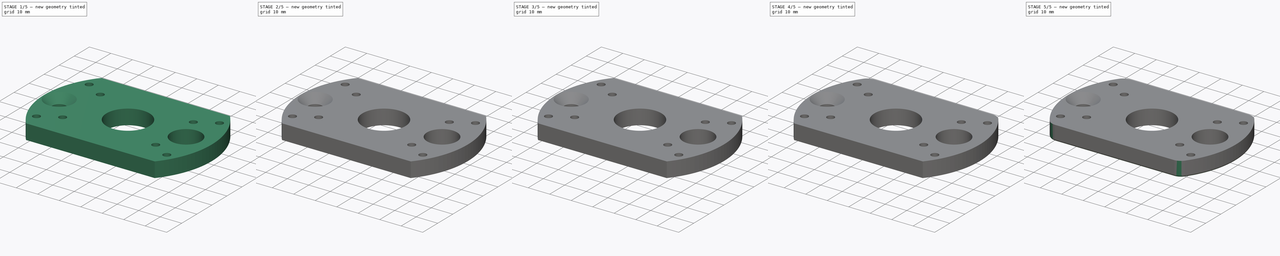
[diagram: build sequence overview — one tinted view per stage of 5, left to right]
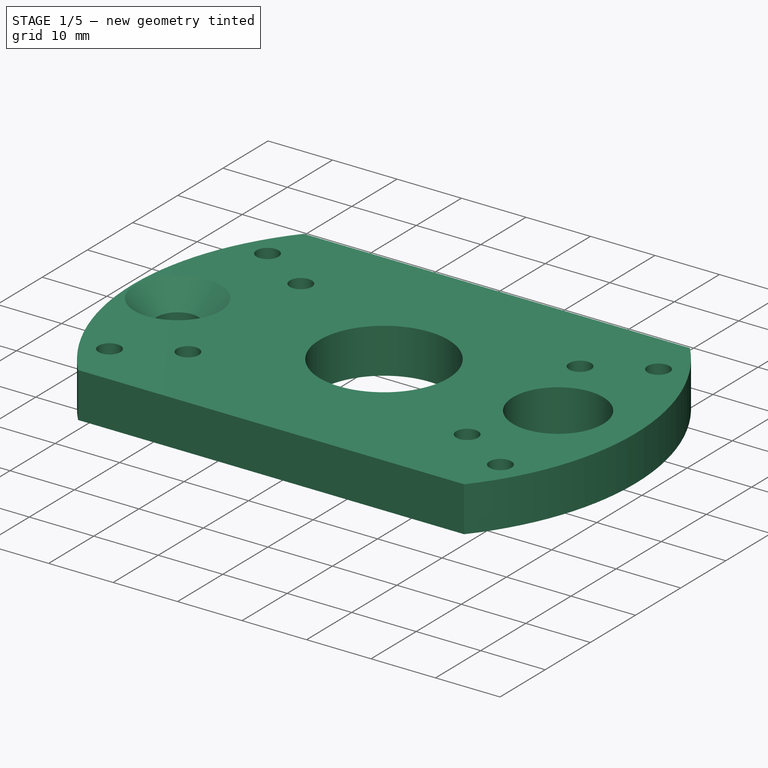
[diagram: stage 1 of 5 — iso view after this stage's code; geometry added in this stage tinted green]
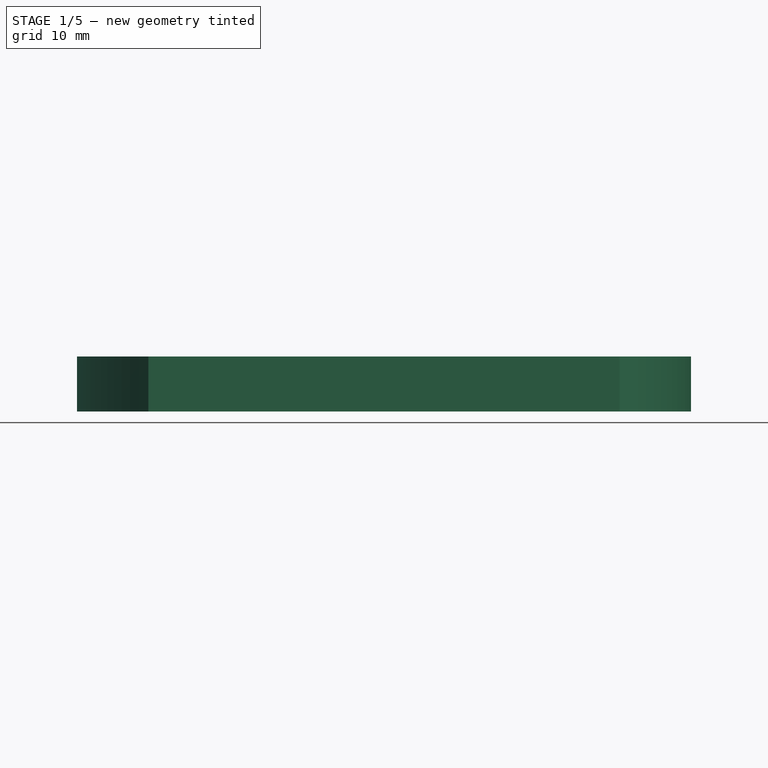
[diagram: stage 1 of 5 — front view after this stage's code; geometry added in this stage tinted green]
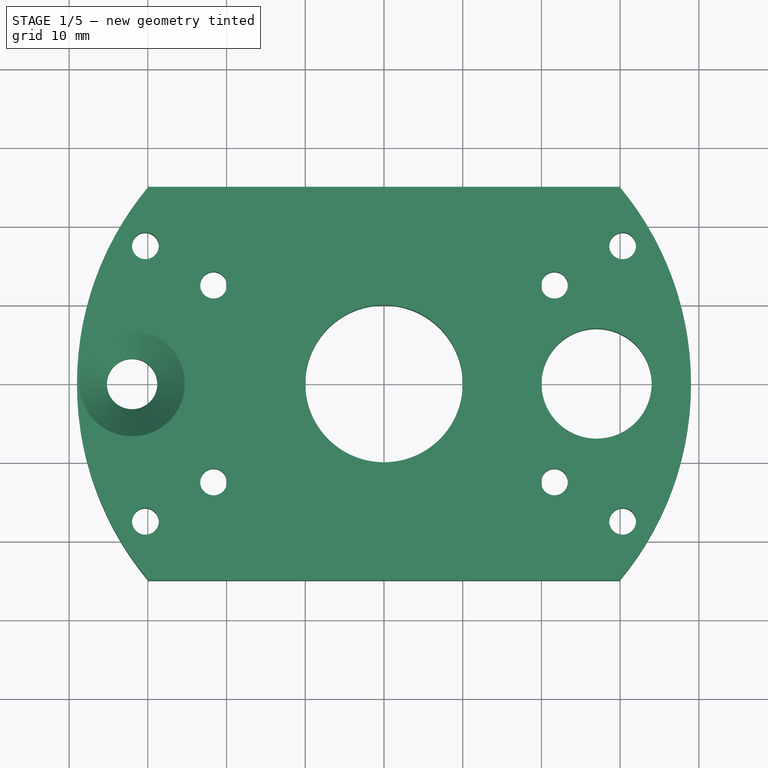
[diagram: stage 1 of 5 — top view after this stage's code; geometry added in this stage tinted green]
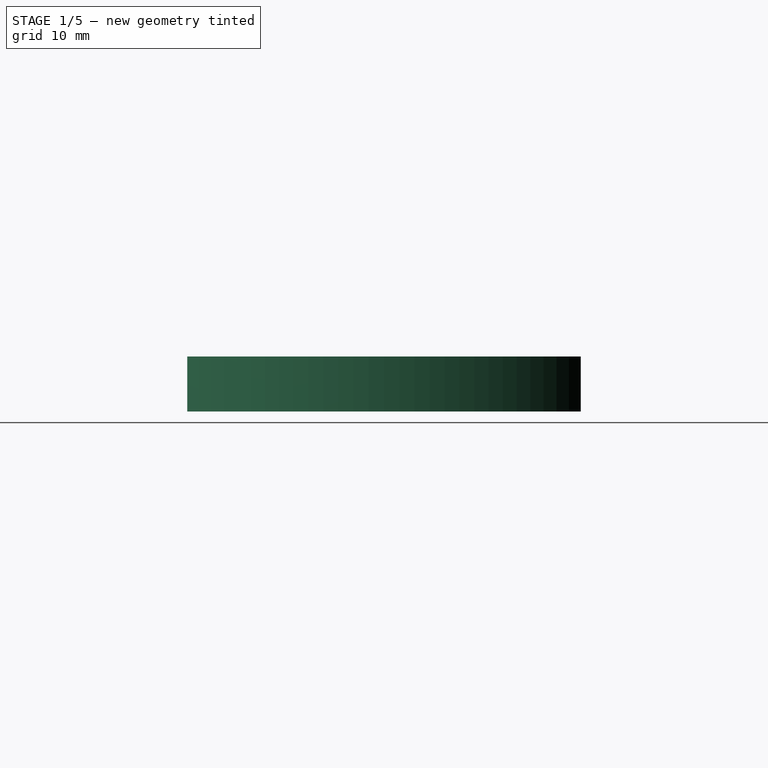
[diagram: stage 1 of 5 — right view after this stage's code; geometry added in this stage tinted green]
FCSTD DOCUMENT  (FreeCAD 0.16R6705 (Git))
Label: KneePushRodMount
License: All rights reserved
LicenseURL: http://en.wikipedia.org/wiki/All_rights_reserved
objects: PartDesign::Chamfer×9, PartDesign::Fillet×5, Sketcher::SketchObject×2, PartDesign::Pad×1, PartDesign::Pocket×1
note: 20 computed .brp shape members not serialized (recipe doc carries the construction recipe); baked Part::Feature solids carry a one-line shape summary decoded from their .brp

FEATURE [Sketcher::SketchObject] Sketch020
  Placement = pos=(0,0,0) rot=(1,0,0;3.14159rad)
  sketch-geometry (20):
    g0: Circle [constr] CenterX=0 CenterY=0 CenterZ=0 NormalX=0 NormalY=0 NormalZ=1 Radius=25
    g1: Circle CenterX=0 CenterY=0 CenterZ=0 NormalX=0 NormalY=0 NormalZ=1 Radius=10
    g2: Circle [constr] CenterX=0 CenterY=0 CenterZ=0 NormalX=0 NormalY=0 NormalZ=1 Radius=40
    g3: ArcOfCircle CenterX=0 CenterY=0 CenterZ=0 NormalX=0 NormalY=0 NormalZ=1 Radius=39 StartAngle=2.44576 EndAngle=3.83743
    g4: LineSegment StartX=-29.9333 StartY=25 StartZ=0 EndX=29.9333 EndY=25 EndZ=0
    g5: LineSegment StartX=-29.9333 StartY=-25 StartZ=0 EndX=29.9333 EndY=-25 EndZ=0
    g6: ArcOfCircle CenterX=0 CenterY=0 CenterZ=0 NormalX=0 NormalY=0 NormalZ=1 Radius=39 StartAngle=5.58735 EndAngle=6.97902
    g7: Circle CenterX=-32 CenterY=0 CenterZ=0 NormalX=0 NormalY=0 NormalZ=1 Radius=3.2
    g8: Circle CenterX=21.6506 CenterY=12.5 CenterZ=0 NormalX=0 NormalY=0 NormalZ=1 Radius=1.7
    g9: Circle CenterX=21.6506 CenterY=-12.5 CenterZ=0 NormalX=0 NormalY=0 NormalZ=1 Radius=1.7
    g10: Circle CenterX=-21.6506 CenterY=12.5 CenterZ=0 NormalX=0 NormalY=0 NormalZ=1 Radius=1.7
    g11: Circle CenterX=-21.6506 CenterY=-12.5 CenterZ=0 NormalX=0 NormalY=0 NormalZ=1 Radius=1.7
    g12: LineSegment [constr] StartX=-30.3109 StartY=17.5 StartZ=0 EndX=30.3109 EndY=-17.5 EndZ=0
    g13: Circle [constr] CenterX=0 CenterY=0 CenterZ=0 NormalX=0 NormalY=0 NormalZ=1 Radius=35
    g14: LineSegment [constr] StartX=30.3109 StartY=17.5 StartZ=0 EndX=-30.3109 EndY=-17.5 EndZ=0
    g15: Circle CenterX=-30.3109 CenterY=17.5 CenterZ=0 NormalX=0 NormalY=0 NormalZ=1 Radius=1.7
    g16: Circle CenterX=-30.3109 CenterY=-17.5 CenterZ=0 NormalX=0 NormalY=0 NormalZ=1 Radius=1.7
    g17: Circle CenterX=30.3109 CenterY=17.5 CenterZ=0 NormalX=0 NormalY=0 NormalZ=1 Radius=1.7
    g18: Circle CenterX=30.3109 CenterY=-17.5 CenterZ=0 NormalX=0 NormalY=0 NormalZ=1 Radius=1.7
    g19: Circle CenterX=27 CenterY=0 CenterZ=0 NormalX=0 NormalY=0 NormalZ=1 Radius=7
  constraints (54):
    c: Coincident(g0,g-1)
    c: Coincident(g1,g-1)
    c: Radius(g1) = 10
    c: Radius(g0) = 25
    c: Coincident(g2,g-1)
    c: Radius(g2) = 40
    c: Coincident(g3,g-1)
    c: Radius(g3) = 39
    c: Horizontal(g4)
    c: Horizontal(g5)
    c: Coincident(g3,g4)
    c: Coincident(g6,g4)
    c: Equal(g3,g6)
    c: Coincident(g3,g5)
    c: Coincident(g6,g5)
    c: Coincident(g3,g6)
    c: DistanceY(g3,g3) = 50
    c: Symmetric(g3,g4,g-1)
    c: PointOnObject(g7,g-1)
    c: Radius(g7) = 3.2
    c: DistanceX(g7,g-1) = 32
    c: PointOnObject(g11,g0)
    c: PointOnObject(g10,g0)
    c: PointOnObject(g8,g0)
    c: PointOnObject(g9,g0)
    c: PointOnObject(g-1,g12)
    c: Coincident(g13,g-1)
    c: PointOnObject(g9,g12)
    c: PointOnObject(g10,g12)
    c: PointOnObject(g11,g14)
    c: Radius(g13) = 35
    c: PointOnObject(g12,g13)
    c: PointOnObject(g12,g13)
    c: PointOnObject(g14,g13)
    c: PointOnObject(g14,g13)
    c: PointOnObject(g8,g14)
    c: Coincident(g15,g12)
    c: Coincident(g16,g14)
    c: Coincident(g18,g12)
    c: Radius(g17) = 1.7
    c: Equal(g17,g18)
    c: Equal(g17,g9)
    c: Equal(g17,g8)
    c: Equal(g17,g10)
    c: Equal(g17,g11)
    c: Equal(g17,g16)
    c: Equal(g17,g15)
    c: Angle(g12,g-1) = 0.523599
    c: Angle(g-1,g14) = 0.523599
    c: Coincident(g17,g14)
    c: PointOnObject(g-1,g14)
    c: PointOnObject(g19,g-1)
    c: Radius(g19) = 7
    c: DistanceX(g-1,g19) = 27
FEATURE [PartDesign::Pad] Pad
  Length = 7
  Length2 = 100
  Placement = pos=(0,0,0) rot=(1,0,0;3.14159rad)
  Sketch = -> Sketch020
  Type = 0
FEATURE [Sketcher::SketchObject] Sketch021
  Placement = pos=(0,0,-7) rot=(1,0,0;3.14159rad)
  Support = -> Pad [Face17]
  sketch-geometry (20):
    g0: Circle [constr] CenterX=0 CenterY=0 CenterZ=0 NormalX=0 NormalY=0 NormalZ=1 Radius=25
    g1: Circle [constr] CenterX=0 CenterY=0 CenterZ=0 NormalX=0 NormalY=0 NormalZ=1 Radius=10
    g2: Circle [constr] CenterX=0 CenterY=0 CenterZ=0 NormalX=0 NormalY=0 NormalZ=1 Radius=40
    g3: ArcOfCircle [constr] CenterX=0 CenterY=0 CenterZ=0 NormalX=0 NormalY=0 NormalZ=1 Radius=39 StartAngle=2.44576 EndAngle=3.83743
    g4: LineSegment [constr] StartX=-29.9333 StartY=25 StartZ=0 EndX=29.9333 EndY=25 EndZ=0
    g5: LineSegment [constr] StartX=-29.9333 StartY=-25 StartZ=0 EndX=29.9333 EndY=-25 EndZ=0
    g6: ArcOfCircle [constr] CenterX=0 CenterY=0 CenterZ=0 NormalX=0 NormalY=0 NormalZ=1 Radius=39 StartAngle=5.58735 EndAngle=6.97902
    g7: Circle [constr] CenterX=-32 CenterY=0 CenterZ=0 NormalX=0 NormalY=0 NormalZ=1 Radius=3.2
    g8: Circle CenterX=21.6506 CenterY=12.5 CenterZ=0 NormalX=0 NormalY=0 NormalZ=1 Radius=3.5
    g9: Circle CenterX=21.6506 CenterY=-12.5 CenterZ=0 NormalX=0 NormalY=0 NormalZ=1 Radius=3.5
    g10: Circle CenterX=-21.6506 CenterY=12.5 CenterZ=0 NormalX=0 NormalY=0 NormalZ=1 Radius=3.5
    g11: Circle CenterX=-21.6506 CenterY=-12.5 CenterZ=0 NormalX=0 NormalY=0 NormalZ=1 Radius=3.5
    g12: LineSegment [constr] StartX=-30.3109 StartY=17.5 StartZ=0 EndX=30.3109 EndY=-17.5 EndZ=0
    g13: Circle [constr] CenterX=0 CenterY=0 CenterZ=0 NormalX=0 NormalY=0 NormalZ=1 Radius=35
    g14: LineSegment [constr] StartX=30.3109 StartY=17.5 StartZ=0 EndX=-30.3109 EndY=-17.5 EndZ=0
    g15: Circle [constr] CenterX=-30.3109 CenterY=17.5 CenterZ=0 NormalX=0 NormalY=0 NormalZ=1 Radius=3.5
    g16: Circle [constr] CenterX=-30.3109 CenterY=-17.5 CenterZ=0 NormalX=0 NormalY=0 NormalZ=1 Radius=3.5
    g17: Circle [constr] CenterX=30.3109 CenterY=17.5 CenterZ=0 NormalX=0 NormalY=0 NormalZ=1 Radius=3.5
    g18: Circle [constr] CenterX=30.3109 CenterY=-17.5 CenterZ=0 NormalX=0 NormalY=0 NormalZ=1 Radius=3.5
    g19: Circle [constr] CenterX=27 CenterY=0 CenterZ=0 NormalX=0 NormalY=0 NormalZ=1 Radius=7
  constraints (54):
    c: Coincident(g0,g-1)
    c: Coincident(g1,g-1)
    c: Radius(g1) = 10
    c: Radius(g0) = 25
    c: Coincident(g2,g-1)
    c: Radius(g2) = 40
    c: Coincident(g3,g-1)
    c: Radius(g3) = 39
    c: Horizontal(g4)
    c: Horizontal(g5)
    c: Coincident(g3,g4)
    c: Coincident(g6,g4)
    c: Equal(g3,g6)
    c: Coincident(g3,g5)
    c: Coincident(g6,g5)
    c: Coincident(g3,g6)
    c: DistanceY(g3,g3) = 50
    c: Symmetric(g3,g4,g-1)
    c: PointOnObject(g7,g-1)
    c: Radius(g7) = 3.2
    c: DistanceX(g7,g-1) = 32
    c: PointOnObject(g11,g0)
    c: PointOnObject(g10,g0)
    c: PointOnObject(g8,g0)
    c: PointOnObject(g9,g0)
    c: PointOnObject(g-1,g12)
    c: Coincident(g13,g-1)
    c: PointOnObject(g9,g12)
    c: PointOnObject(g10,g12)
    c: PointOnObject(g11,g14)
    c: Radius(g13) = 35
    c: PointOnObject(g12,g13)
    c: PointOnObject(g12,g13)
    c: PointOnObject(g14,g13)
    c: PointOnObject(g14,g13)
    c: PointOnObject(g8,g14)
    c: Coincident(g15,g12)
    c: Coincident(g16,g14)
    c: Coincident(g18,g12)
    c: Radius(g17) = 3.5
    c: Equal(g17,g18)
    c: Equal(g17,g9)
    c: Equal(g17,g8)
    c: Equal(g17,g10)
    c: Equal(g17,g11)
    c: Equal(g17,g16)
    c: Equal(g17,g15)
    c: Angle(g12,g-1) = 0.523599
    c: Angle(g-1,g14) = 0.523599
    c: Coincident(g17,g14)
    c: PointOnObject(g-1,g14)
    c: PointOnObject(g19,g-1)
    c: Radius(g19) = 7
    c: DistanceX(g-1,g19) = 27
FEATURE [PartDesign::Pocket] Pocket
  Length = 1
  Placement = pos=(0,0,0) rot=(1,0,0;3.14159rad)
  Sketch = -> Sketch021
  Type = 0
FEATURE [PartDesign::Chamfer] Chamfer
  Base = -> Pocket [Edge14]
  Placement = pos=(0,0,0) rot=(1,0,0;3.14159rad)
  Size = 3.5
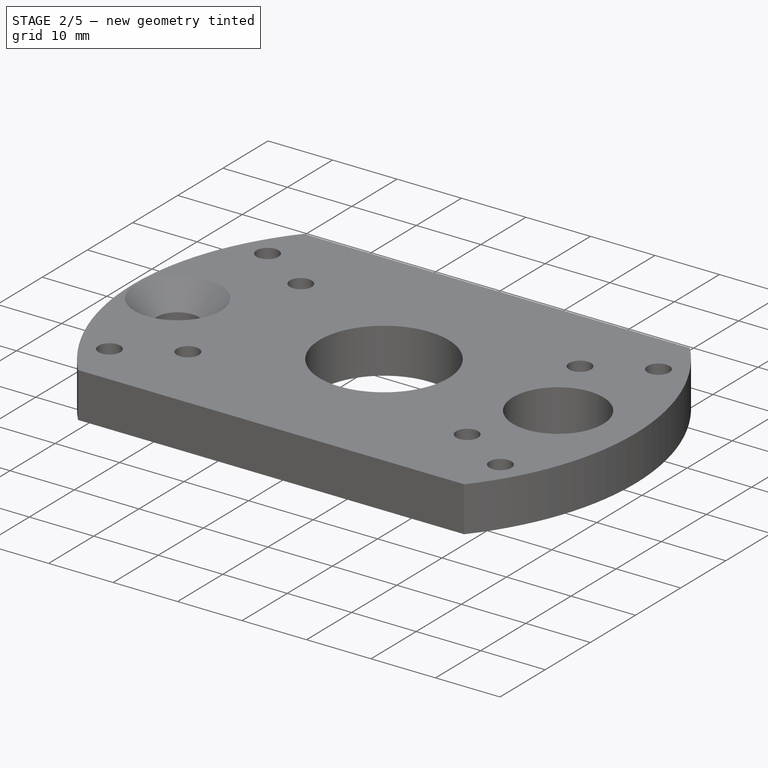
[diagram: stage 2 of 5 — iso view after this stage's code; geometry added in this stage tinted green]
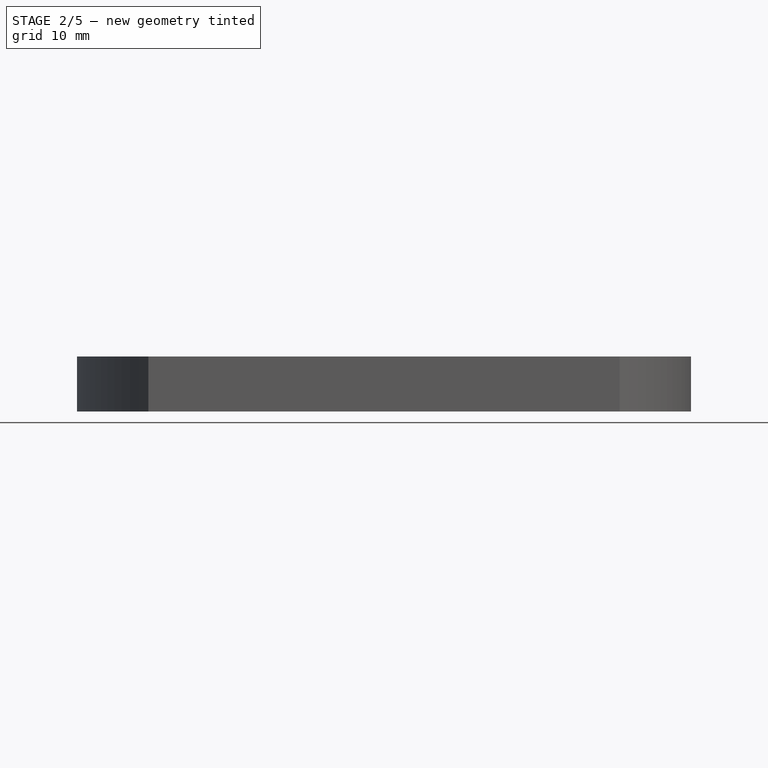
[diagram: stage 2 of 5 — front view after this stage's code; geometry added in this stage tinted green]
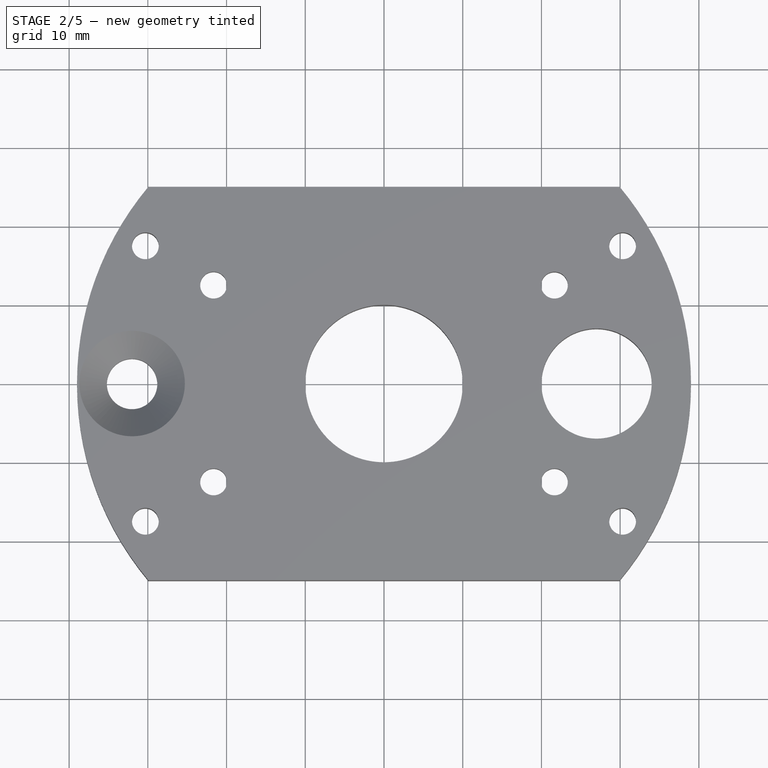
[diagram: stage 2 of 5 — top view after this stage's code; geometry added in this stage tinted green]
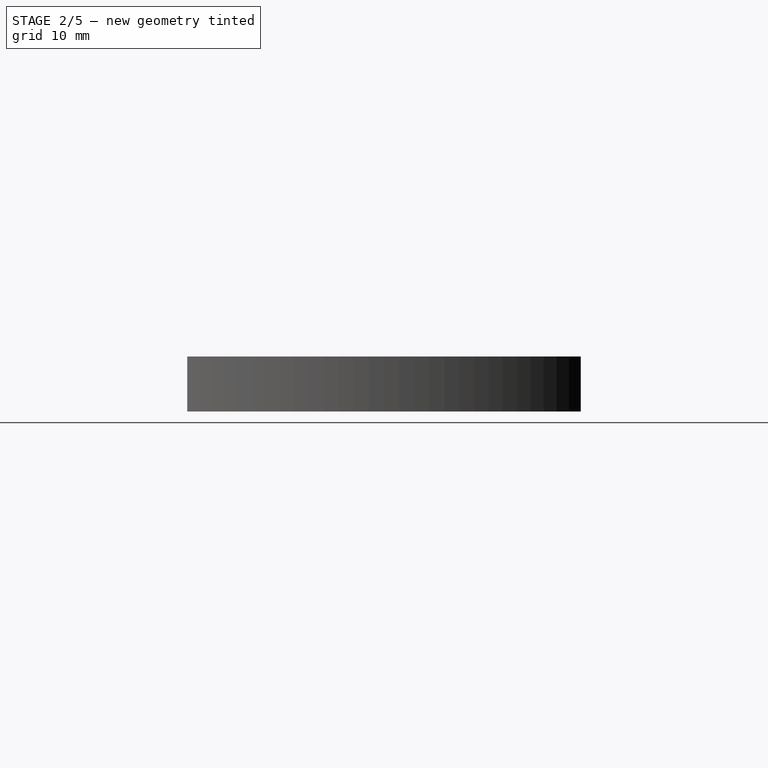
[diagram: stage 2 of 5 — right view after this stage's code; geometry added in this stage tinted green]
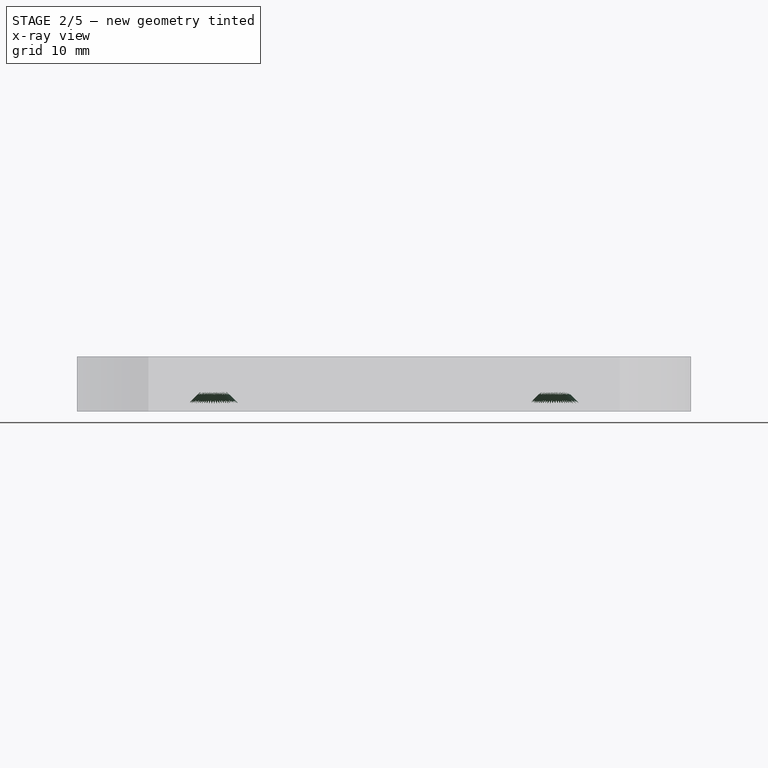
[diagram: stage 2 of 5 — x-ray composite at the front view; earlier geometry ghosted, this stage's added geometry solid]
FEATURE [PartDesign::Chamfer] Chamfer001
  Base = -> Chamfer [Edge35]
  Placement = pos=(0,0,0) rot=(1,0,0;3.14159rad)
  Size = 1.5
FEATURE [PartDesign::Chamfer] Chamfer002
  Base = -> Chamfer001 [Edge40]
  Placement = pos=(0,0,0) rot=(1,0,0;3.14159rad)
  Size = 1.5
FEATURE [PartDesign::Chamfer] Chamfer003
  Base = -> Chamfer002 [Edge38]
  Placement = pos=(0,0,0) rot=(1,0,0;3.14159rad)
  Size = 1.5
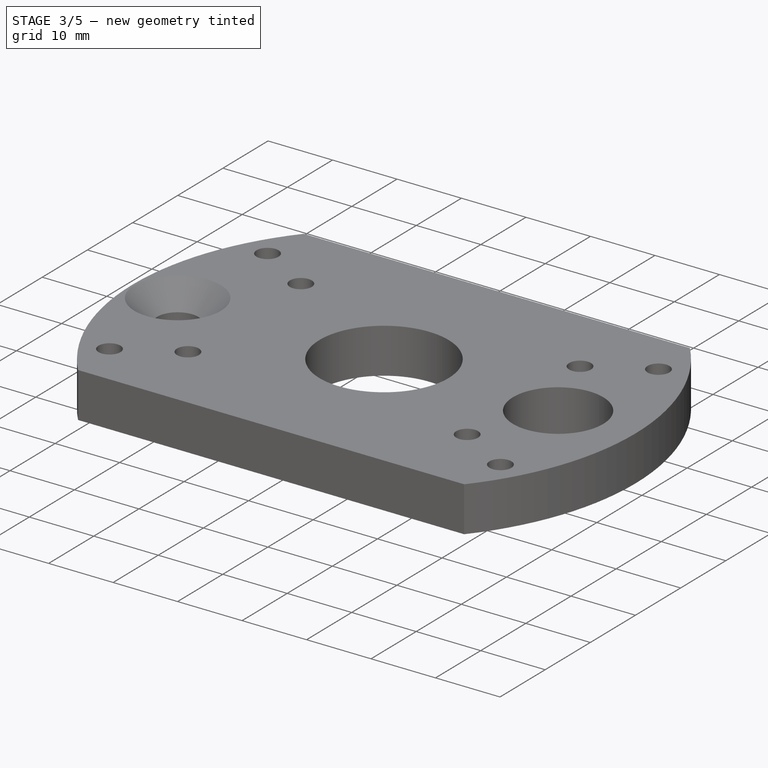
[diagram: stage 3 of 5 — iso view after this stage's code; geometry added in this stage tinted green]
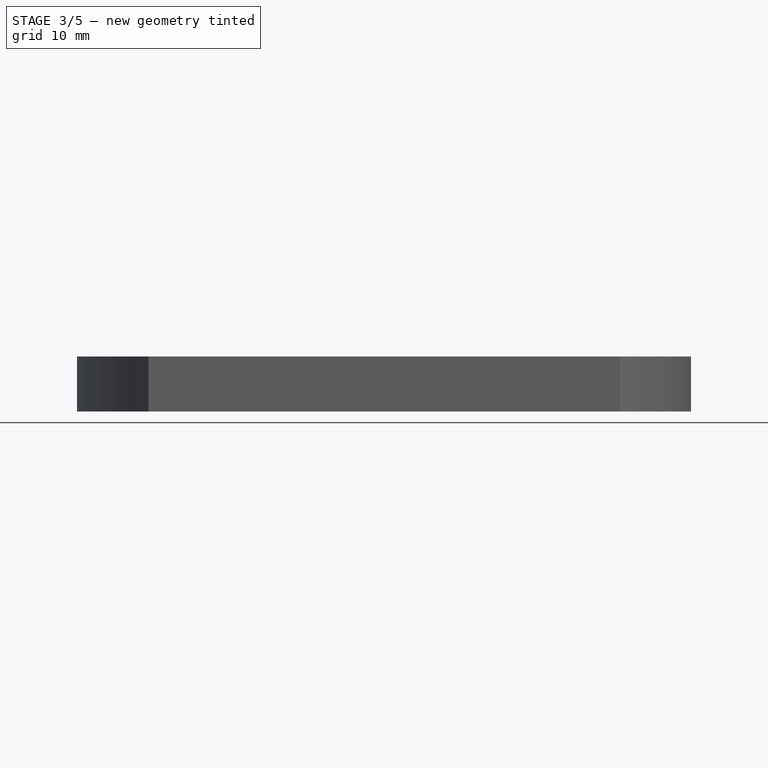
[diagram: stage 3 of 5 — front view after this stage's code; geometry added in this stage tinted green]
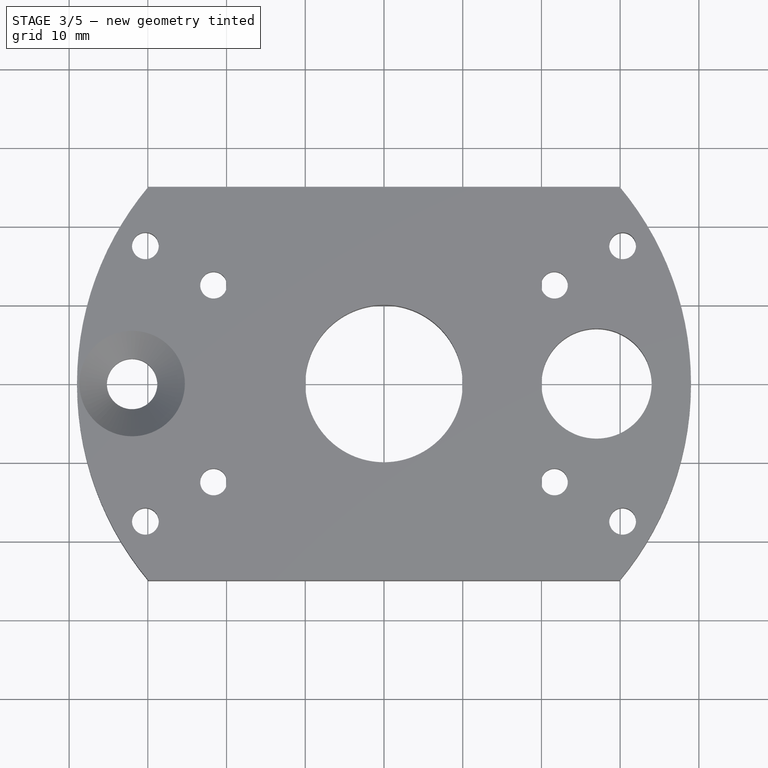
[diagram: stage 3 of 5 — top view after this stage's code; geometry added in this stage tinted green]
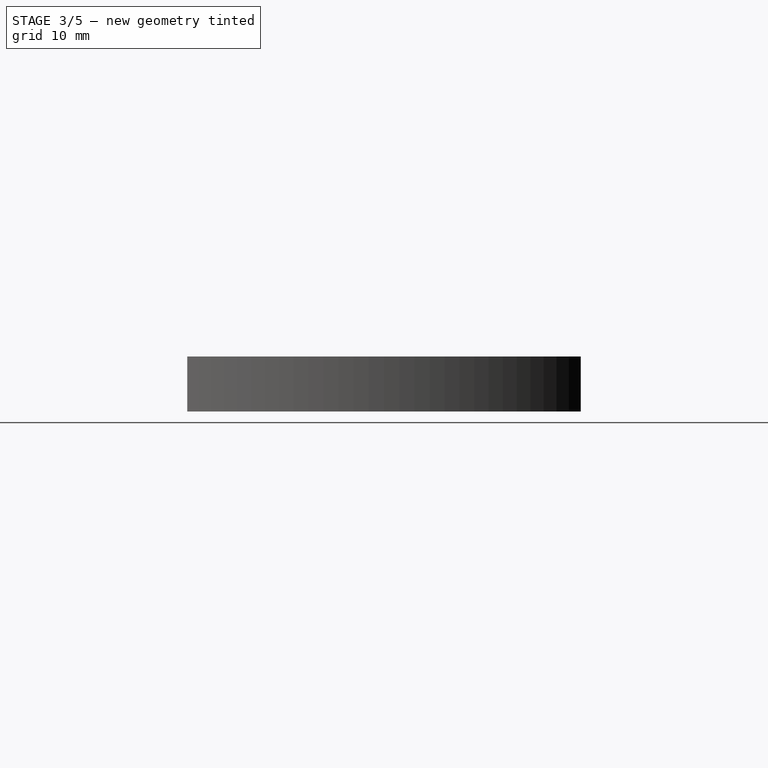
[diagram: stage 3 of 5 — right view after this stage's code; geometry added in this stage tinted green]
FEATURE [PartDesign::Chamfer] Chamfer004
  Base = -> Chamfer003 [Edge36]
  Placement = pos=(0,0,0) rot=(1,0,0;3.14159rad)
  Size = 1.5
FEATURE [PartDesign::Chamfer] Chamfer005
  Base = -> Chamfer004 [Edge48]
  Placement = pos=(0,0,0) rot=(1,0,0;3.14159rad)
  Size = 1.5
FEATURE [PartDesign::Chamfer] Chamfer006
  Base = -> Chamfer005 [Edge33]
  Placement = pos=(0,0,0) rot=(1,0,0;3.14159rad)
  Size = 1.5
FEATURE [PartDesign::Chamfer] Chamfer007
  Base = -> Chamfer006 [Edge7]
  Placement = pos=(0,0,0) rot=(1,0,0;3.14159rad)
  Size = 1.5
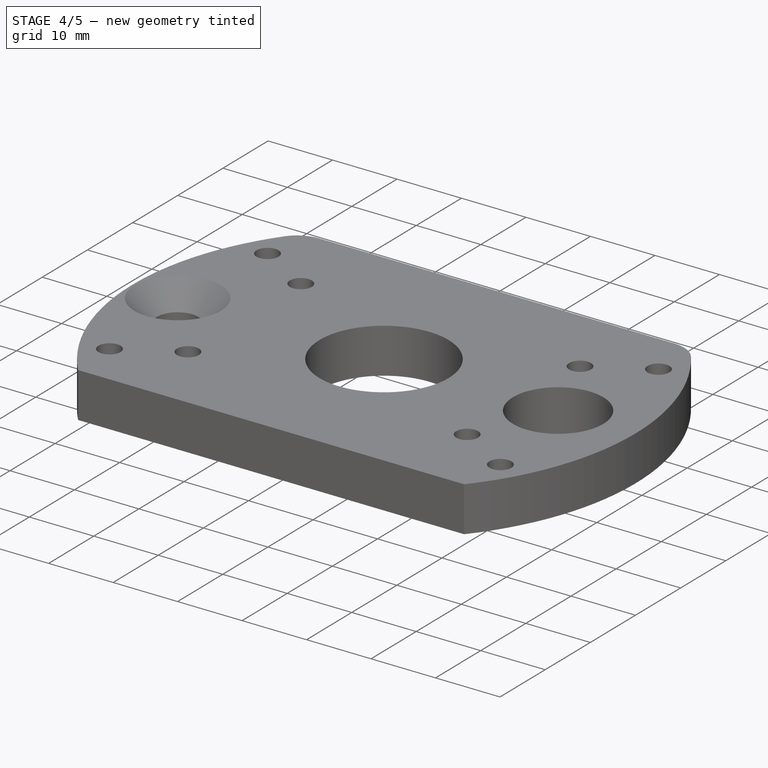
[diagram: stage 4 of 5 — iso view after this stage's code; geometry added in this stage tinted green]
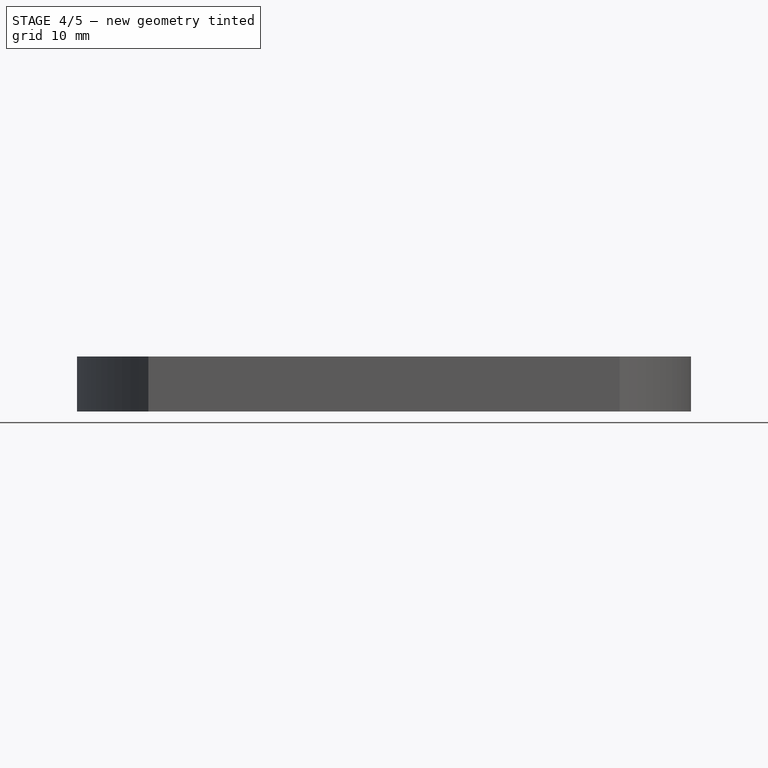
[diagram: stage 4 of 5 — front view after this stage's code; geometry added in this stage tinted green]
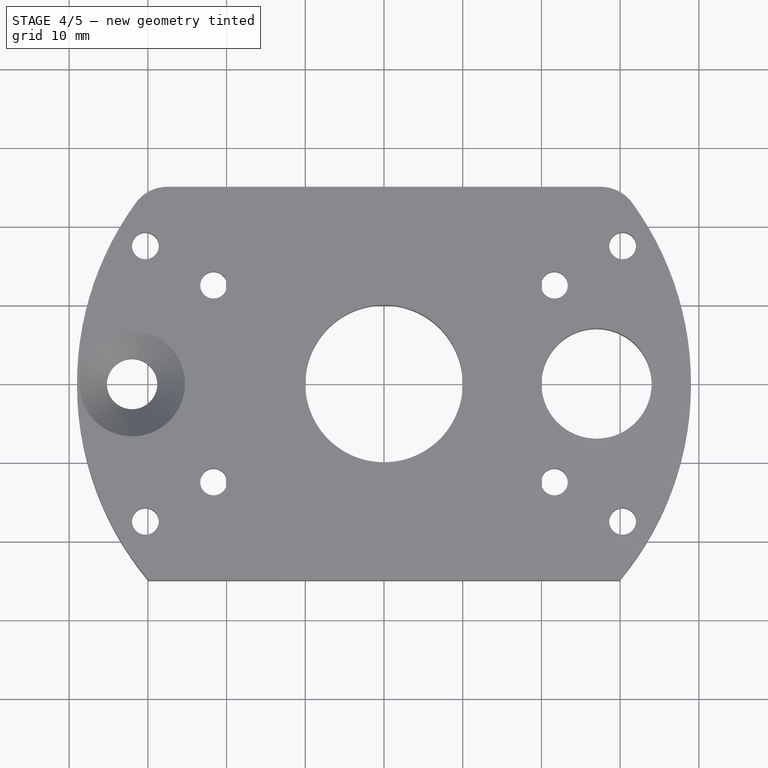
[diagram: stage 4 of 5 — top view after this stage's code; geometry added in this stage tinted green]
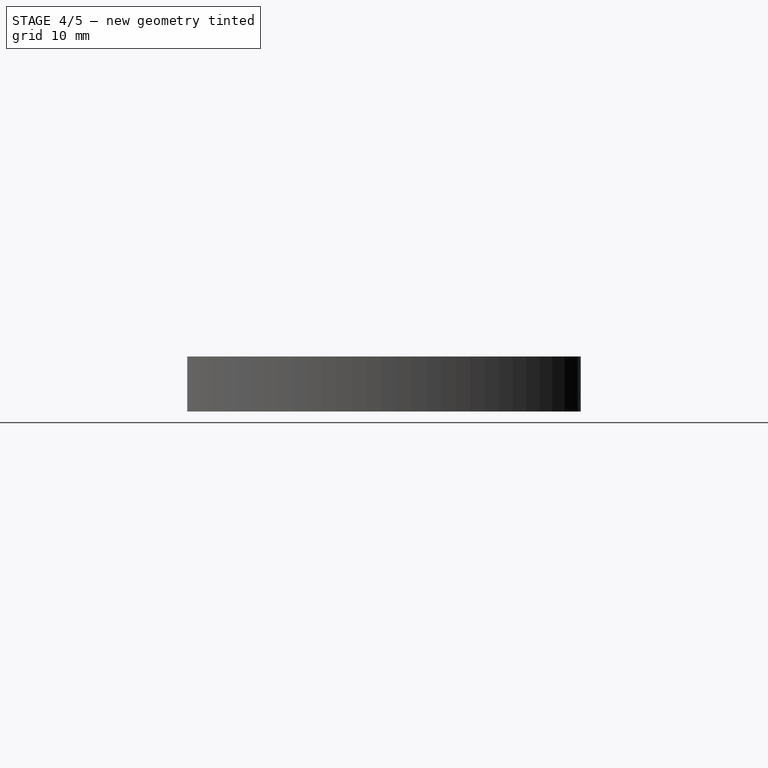
[diagram: stage 4 of 5 — right view after this stage's code; geometry added in this stage tinted green]
FEATURE [PartDesign::Chamfer] Chamfer008
  Base = -> Chamfer007 [Edge10]
  Placement = pos=(0,0,0) rot=(1,0,0;3.14159rad)
  Size = 1.5
FEATURE [PartDesign::Fillet] Fillet
  Base = -> Chamfer008 [Edge25]
  Placement = pos=(0,0,0) rot=(1,0,0;3.14159rad)
  Radius = 5
FEATURE [PartDesign::Fillet] Fillet001
  Base = -> Fillet [Edge25]
  Placement = pos=(0,0,0) rot=(1,0,0;3.14159rad)
  Radius = 5
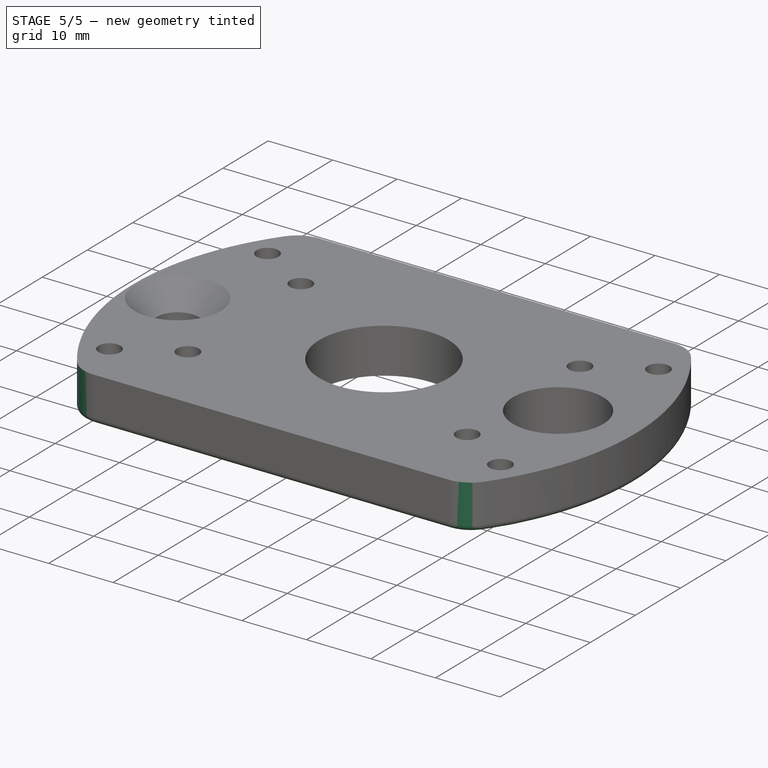
[diagram: stage 5 of 5 — iso view after this stage's code; geometry added in this stage tinted green]
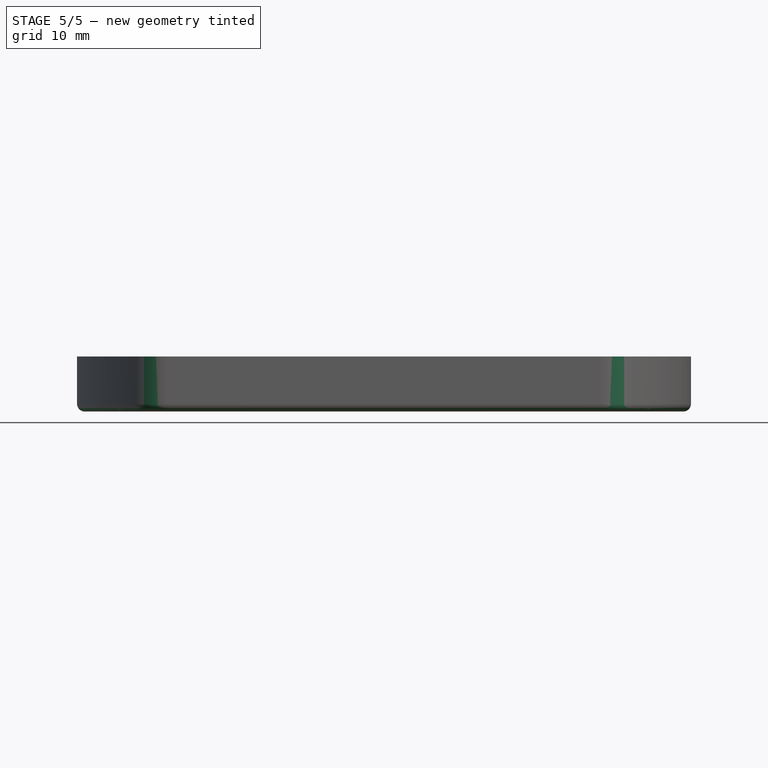
[diagram: stage 5 of 5 — front view after this stage's code; geometry added in this stage tinted green]
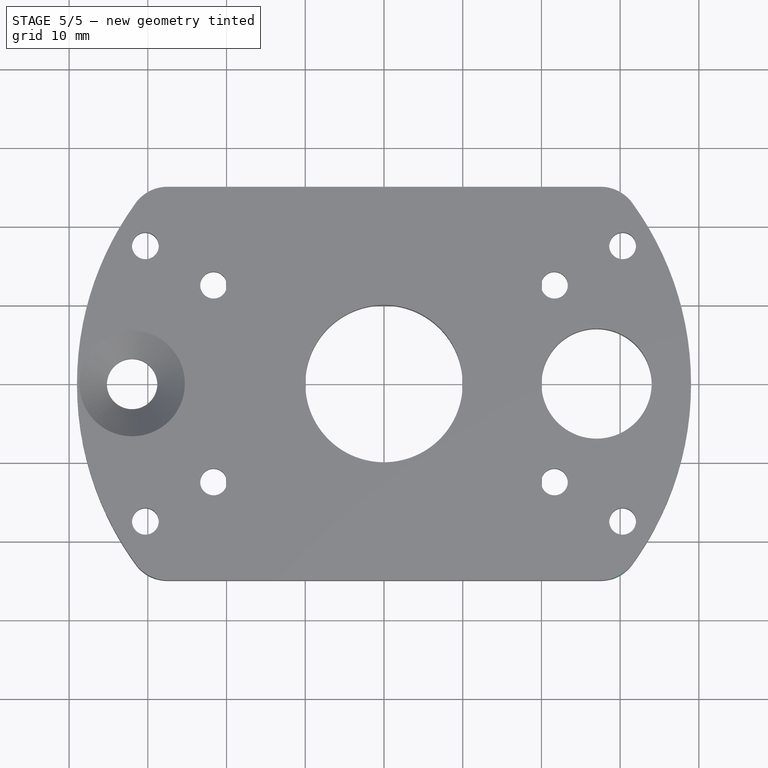
[diagram: stage 5 of 5 — top view after this stage's code; geometry added in this stage tinted green]
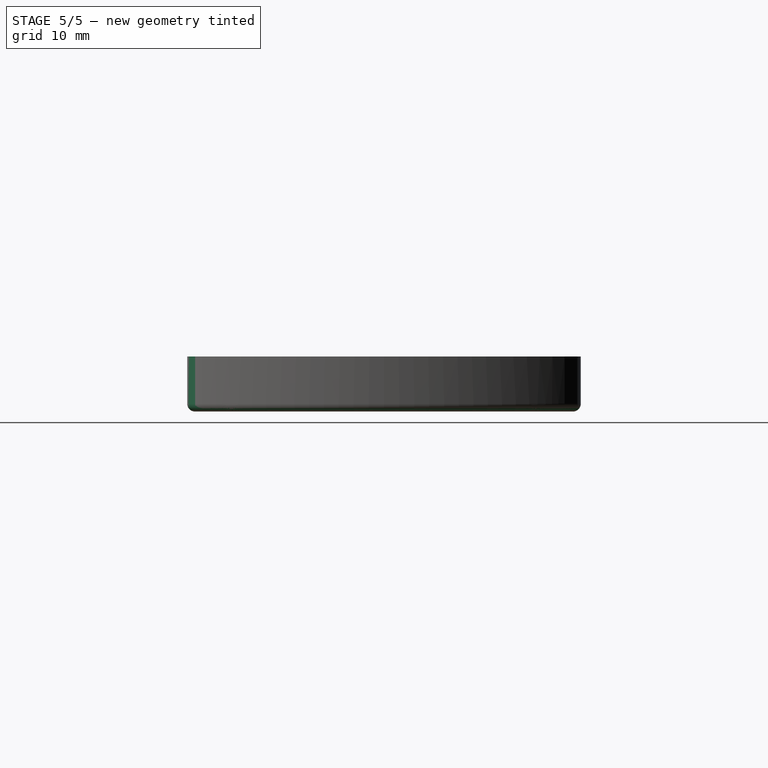
[diagram: stage 5 of 5 — right view after this stage's code; geometry added in this stage tinted green]
FEATURE [PartDesign::Fillet] Fillet002
  Base = -> Fillet001 [Edge26]
  Placement = pos=(0,0,0) rot=(1,0,0;3.14159rad)
  Radius = 5
FEATURE [PartDesign::Fillet] Fillet003
  Base = -> Fillet002 [Edge27]
  Placement = pos=(0,0,0) rot=(1,0,0;3.14159rad)
  Radius = 5
FEATURE [PartDesign::Fillet] Fillet004
  Base = -> Fillet003 [Edge8]
  Placement = pos=(0,0,0) rot=(1,0,0;3.14159rad)
  Radius = 1
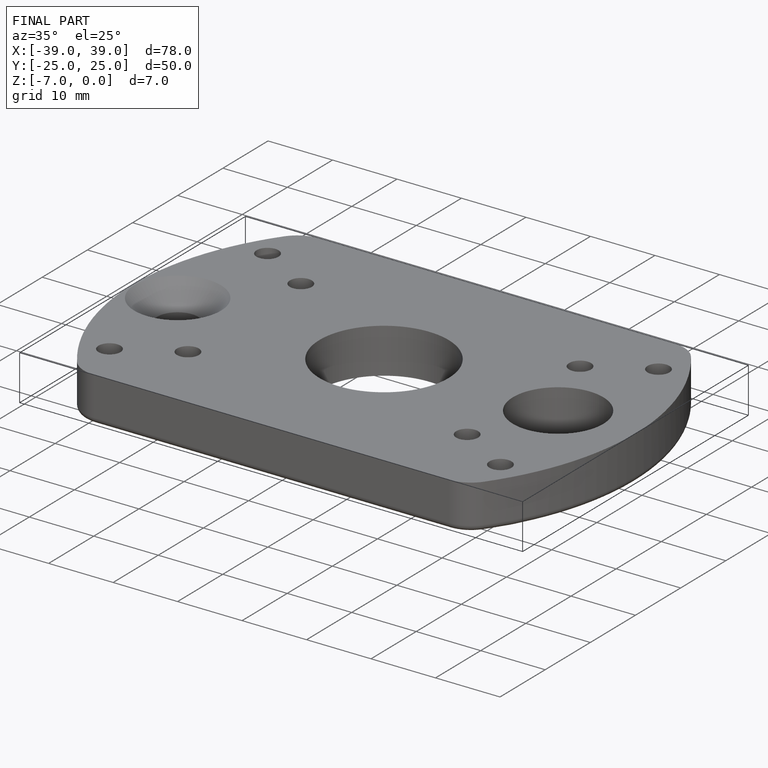
[diagram: finished part — iso view with bounding-box wireframe]
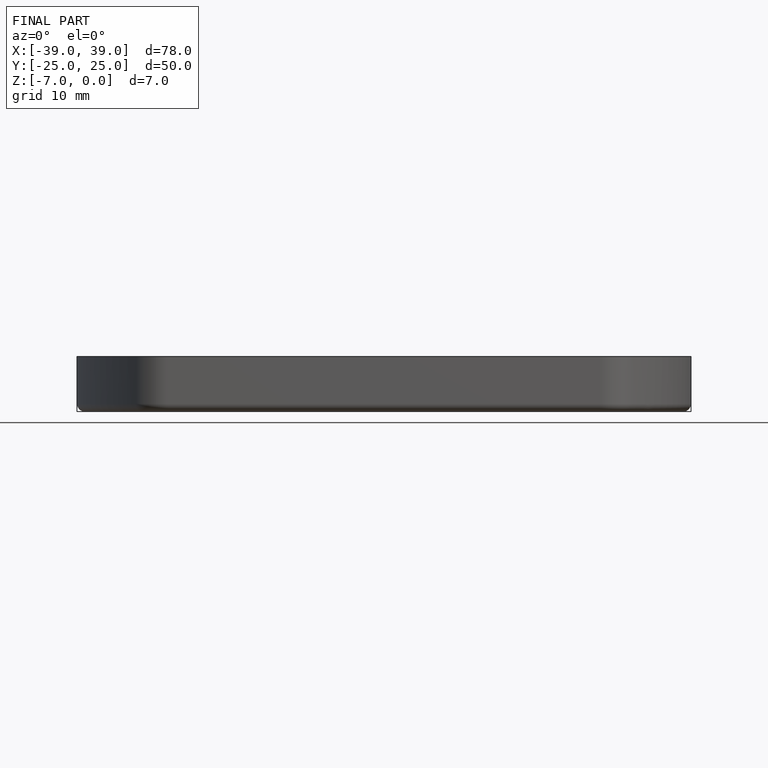
[diagram: finished part — front view with bounding-box wireframe]
